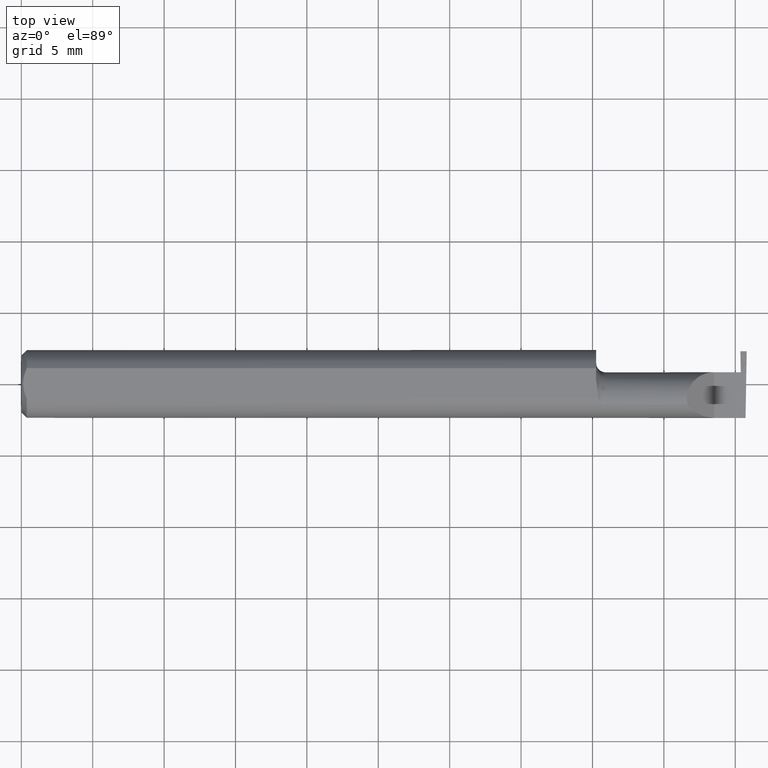
[diagram: clean part render]
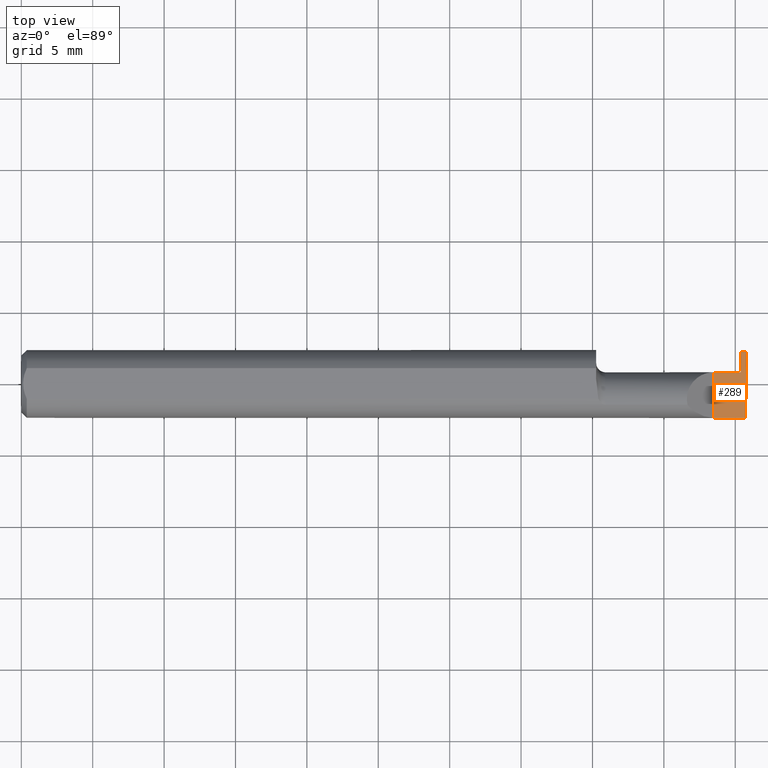
[diagram: same view with one face highlighted and labeled with its STEP entity id]
A machine part, top view. The second image highlights one B-rep face of the part: STEP entity #289.
In plain terms, the highlighted planar face has unit normal (-0, 0, -1).
Its self-contained STEP definition (entity closure, byte-faithful):
#1 = VECTOR ( 'NONE', #663, 39.37007874015748143 ) ;
#3 = VERTEX_POINT ( 'NONE', #636 ) ;
#7 = VECTOR ( 'NONE', #419, 39.37007874015748143 ) ;
#11 = LINE ( 'NONE', #225, #552 ) ;
#25 = DIRECTION ( 'NONE',  ( 0.01744642479411314534, 0.9998477995484629233, -2.135106780035503491E-18 ) ) ;
#27 = ORIENTED_EDGE ( 'NONE', *, *, #428, .T. ) ;
#44 = EDGE_CURVE ( 'NONE', #3, #217, #224, .T. ) ;
#75 = VECTOR ( 'NONE', #77, 39.37007874015748143 ) ;
#76 = CARTESIAN_POINT ( 'NONE',  ( 1.899999999999999911, 0.09024999999999999689, -4.102566777143687330E-19 ) ) ;
#77 = DIRECTION ( 'NONE',  ( -1.000000000000000000, -1.574165331271661086E-15, 1.224646799147358877E-16 ) ) ;
#90 = VECTOR ( 'NONE', #123, 39.37007874015748143 ) ;
#91 = VERTEX_POINT ( 'NONE', #495 ) ;
#92 = EDGE_CURVE ( 'NONE', #474, #91, #11, .T. ) ;
#123 = DIRECTION ( 'NONE',  ( 1.000000000000000000, -2.147679240302093876E-17, 0.000000000000000000 ) ) ;
#142 = VERTEX_POINT ( 'NONE', #657 ) ;
#177 = VERTEX_POINT ( 'NONE', #611 ) ;
#182 = CARTESIAN_POINT ( 'NONE',  ( 1.996681322863967711, -0.09994209213532713465, 4.064207332045267881E-19 ) ) ;
#208 = LINE ( 'NONE', #318, #7 ) ;
#216 = LINE ( 'NONE', #484, #583 ) ;
#217 = VERTEX_POINT ( 'NONE', #649 ) ;
#224 = LINE ( 'NONE', #641, #90 ) ;
#225 = CARTESIAN_POINT ( 'NONE',  ( 2.999519565323743132E-32, -0.09375000000000001388, 2.449293598294717754E-16 ) ) ;
#228 = EDGE_CURVE ( 'NONE', #142, #217, #551, .T. ) ;
#249 = ORIENTED_EDGE ( 'NONE', *, *, #590, .F. ) ;
#260 = EDGE_CURVE ( 'NONE', #91, #3, #208, .T. ) ;
#263 = ORIENTED_EDGE ( 'NONE', *, *, #92, .F. ) ;
#275 = VECTOR ( 'NONE', #25, 39.37007874015748854 ) ;
#280 = CARTESIAN_POINT ( 'NONE',  ( 2.000000000000000444, 0.09024999999999998301, -3.388131789017201356E-17 ) ) ;
#289 = ADVANCED_FACE ( 'NONE', ( #422 ), #317, .F. ) ;
#306 = DIRECTION ( 'NONE',  ( -1.000000000000000000, 0.000000000000000000, 1.224646799147358877E-16 ) ) ;
#309 = DIRECTION ( 'NONE',  ( -1.224646799147358877E-16, 0.000000000000000000, -1.000000000000000000 ) ) ;
#317 = PLANE ( 'NONE',  #550 ) ;
#318 = CARTESIAN_POINT ( 'NONE',  ( 1.910000000000000142, -0.1000000000000000056, 1.102182119232621301E-17 ) ) ;
#320 = DIRECTION ( 'NONE',  ( 0.01742050049977865098, -0.9998482515673751125, -2.130797594925076716E-18 ) ) ;
#351 = EDGE_LOOP ( 'NONE', ( #263, #580, #249, #27, #601, #632, #547 ) ) ;
#366 = CARTESIAN_POINT ( 'NONE',  ( 2.000000000000000000, -0.1000000000000000056, 0.000000000000000000 ) ) ;
#380 = CARTESIAN_POINT ( 'NONE',  ( 1.996789369178486595, -0.09374999999634724135, 1.727064893179230389E-17 ) ) ;
#398 = CARTESIAN_POINT ( 'NONE',  ( 1.999999999999999778, 0.03225000000000002864, 2.549510916572845000E-32 ) ) ;
#419 = DIRECTION ( 'NONE',  ( -0.000000000000000000, 1.000000000000000000, -0.000000000000000000 ) ) ;
#422 = FACE_OUTER_BOUND ( 'NONE', #351, .T. ) ;
#428 = EDGE_CURVE ( 'NONE', #177, #142, #216, .T. ) ;
#442 = DIRECTION ( 'NONE',  ( -1.000000000000000000, -0.000000000000000000, -0.000000000000000000 ) ) ;
#451 = LINE ( 'NONE', #182, #275 ) ;
#461 = VERTEX_POINT ( 'NONE', #280 ) ;
#474 = VERTEX_POINT ( 'NONE', #380 ) ;
#484 = CARTESIAN_POINT ( 'NONE',  ( 1.985819058079965505, -0.1002470765992919816, 1.736664513126461507E-18 ) ) ;
#495 = CARTESIAN_POINT ( 'NONE',  ( 1.910000000000000142, -0.09375000000000001388, 1.102182119232621301E-17 ) ) ;
#547 = ORIENTED_EDGE ( 'NONE', *, *, #260, .F. ) ;
#550 = AXIS2_PLACEMENT_3D ( 'NONE', #366, #309, #306 ) ;
#551 = LINE ( 'NONE', #398, #75 ) ;
#552 = VECTOR ( 'NONE', #442, 39.37007874015748143 ) ;
#573 = EDGE_CURVE ( 'NONE', #474, #461, #451, .T. ) ;
#580 = ORIENTED_EDGE ( 'NONE', *, *, #573, .T. ) ;
#583 = VECTOR ( 'NONE', #320, 39.37007874015748854 ) ;
#590 = EDGE_CURVE ( 'NONE', #177, #461, #656, .T. ) ;
#601 = ORIENTED_EDGE ( 'NONE', *, *, #228, .T. ) ;
#611 = CARTESIAN_POINT ( 'NONE',  ( 1.982499999999999929, 0.09024999999999999689, -4.102566777143687330E-19 ) ) ;
#632 = ORIENTED_EDGE ( 'NONE', *, *, #44, .F. ) ;
#636 = CARTESIAN_POINT ( 'NONE',  ( 1.910000000000000142, 0.03224999999999999395, 1.102182119232621301E-17 ) ) ;
#641 = CARTESIAN_POINT ( 'NONE',  ( 1.584999999999999964, 0.03224999999999999395, 5.082284216461540301E-17 ) ) ;
#649 = CARTESIAN_POINT ( 'NONE',  ( 1.982499999999999929, 0.03225000000000000783, 5.082285660060015392E-17 ) ) ;
#656 = LINE ( 'NONE', #76, #1 ) ;
#657 = CARTESIAN_POINT ( 'NONE',  ( 1.983510542377208807, 0.03225000000000000783, 9.546713055072177866E-18 ) ) ;
#663 = DIRECTION ( 'NONE',  ( 1.000000000000000000, -0.000000000000000000, -0.000000000000000000 ) ) ;